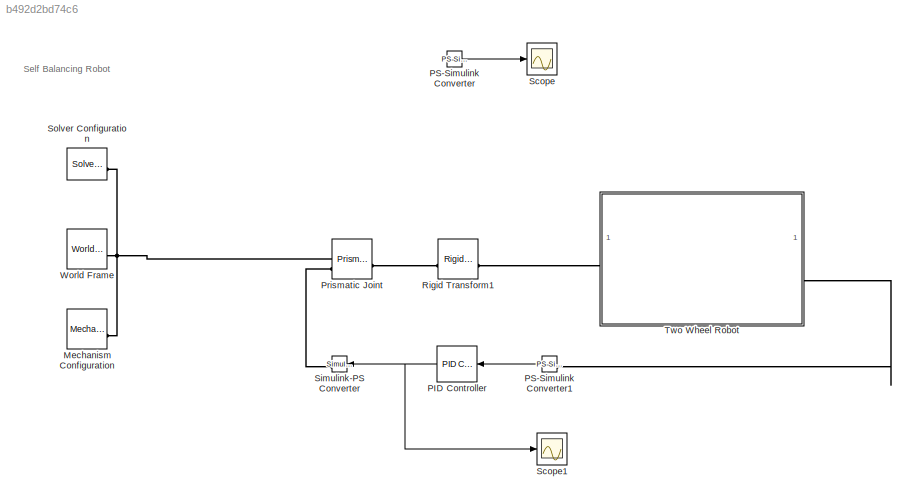
MODEL slx_b492d2bd74c6
KIND model
CONFIG AbsTol = 1e-3
CONFIG EnableMultiTasking = on
CONFIG FixedStep = auto
CONFIG MaxStep = auto
CONFIG MinStep = auto
CONFIG RelTol = 1e-3
CONFIG SampleTimeConstraint = Unconstrained
CONFIG SolverName = VariableStepAuto
CONFIG StartTime = 0.0
CONFIG StopTime = 10.0
BLOCK [Reference] Mechanism Configuration  REF=sm_lib/Utilities/Mechanism
Configuration
  SourceBlock = sm_lib/Utilities/Mechanism\nConfiguration
  SourceType = Mechanism\nConfiguration
BLOCK [Reference] PID Controller  REF=slpidlib/PID Controller
  LibrarySourceBlock = simulink/Continuous/PID Controller
  NameLocation = top
  SourceBlock = slpidlib/PID Controller
  SourceType = PID 1dof
BLOCK [Reference] PS-Simulink Converter  REF=nesl_utility/PS-Simulink
Converter
  SourceBlock = nesl_utility/PS-Simulink\nConverter
  SourceType = PS-Simulink\nConverter
BLOCK [Reference] PS-Simulink Converter1  REF=nesl_utility/PS-Simulink
Converter
  NameLocation = top
  SourceBlock = nesl_utility/PS-Simulink\nConverter
  SourceType = PS-Simulink\nConverter
BLOCK [Reference] Prismatic Joint  REF=sm_lib/Joints/Prismatic
Joint
  SourceBlock = sm_lib/Joints/Prismatic\nJoint
  SourceType = Prismatic\nJoint
BLOCK [Reference] Rigid Transform1  REF=sm_lib/Frames and
Transforms/Rigid
Transform
  SourceBlock = sm_lib/Frames and\nTransforms/Rigid\nTransform
  SourceType = Rigid\nTransform
BLOCK [Scope] Scope
  Floating = off
  NumInputPorts = 1
  ScopeSpecificationString = Simulink.scopes.TimeScopeBlockCfg('CurrentConfiguration', extmgr.ConfigurationSet(extmgr.Configuration('Core','General UI',true),extmgr.Configuration('Core','Source UI',true),extmgr.Configuration('Sources','WiredSimulink',true),extmgr.Configuration('Visuals','Time Domain',true),extmgr.Configuration('Tools','Plot Navigation',true),extmgr.Configuration('Tools','Measurements',true,'Version','2019b'))...<+19ch>
BLOCK [Scope] Scope1
  Floating = off
  NumInputPorts = 1
  ScopeSpecificationString = Simulink.scopes.TimeScopeBlockCfg('CurrentConfiguration', extmgr.ConfigurationSet(extmgr.Configuration('Core','General UI',true),extmgr.Configuration('Core','Source UI',true),extmgr.Configuration('Sources','WiredSimulink',true,'DataLoggingVariableName','ScopeData1'),extmgr.Configuration('Visuals','Time Domain',true,'SerializedDisplays',{struct('MinYLimReal','-3.52828','MaxYLimReal','22.65095','YLa...<+1410ch>
BLOCK [Reference] Simulink-PS Converter  REF=nesl_utility/Simulink-PS
Converter
  NameLocation = top
  SourceBlock = nesl_utility/Simulink-PS\nConverter
  SourceType = Simulink-PS\nConverter
BLOCK [Reference] Solver Configuration  REF=nesl_utility/Solver
Configuration
  SourceBlock = nesl_utility/Solver\nConfiguration
  SourceType = Solver\nConfiguration
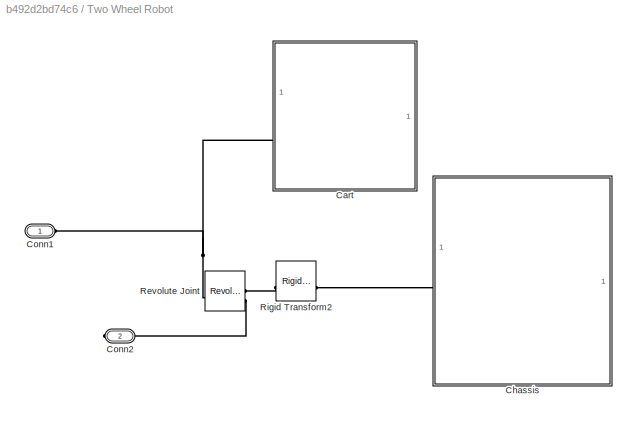
BLOCK [SubSystem] Two Wheel Robot
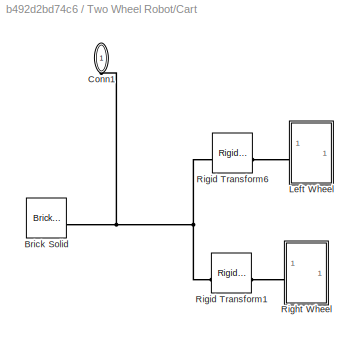
BLOCK [SubSystem] Two Wheel Robot/Cart
BLOCK [Reference] Two Wheel Robot/Cart/Brick Solid  REF=sm_lib/Body Elements/Brick Solid
  SourceBlock = sm_lib/Body Elements/Brick Solid
  SourceType = Brick Solid
BLOCK [PMIOPort] Two Wheel Robot/Cart/Conn1
  NameLocation = left
  Side = Left
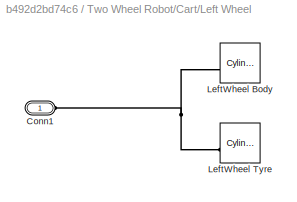
BLOCK [SubSystem] Two Wheel Robot/Cart/Left Wheel
BLOCK [PMIOPort] Two Wheel Robot/Cart/Left Wheel/Conn1
  Side = Left
BLOCK [Reference] Two Wheel Robot/Cart/Left Wheel/LeftWheel Body  REF=sm_lib/Body Elements/Cylindrical Solid
  NameLocation = top
  SourceBlock = sm_lib/Body Elements/Cylindrical Solid
  SourceType = Cylindrical Solid
BLOCK [Reference] Two Wheel Robot/Cart/Left Wheel/LeftWheel Tyre  REF=sm_lib/Body Elements/Cylindrical Solid
  NameLocation = top
  SourceBlock = sm_lib/Body Elements/Cylindrical Solid
  SourceType = Cylindrical Solid
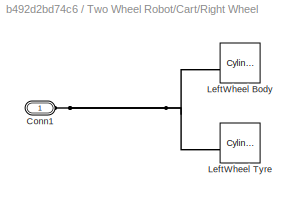
BLOCK [SubSystem] Two Wheel Robot/Cart/Right Wheel
BLOCK [PMIOPort] Two Wheel Robot/Cart/Right Wheel/Conn1
  Side = Left
BLOCK [Reference] Two Wheel Robot/Cart/Right Wheel/LeftWheel Body  REF=sm_lib/Body Elements/Cylindrical Solid
  NameLocation = top
  SourceBlock = sm_lib/Body Elements/Cylindrical Solid
  SourceType = Cylindrical Solid
BLOCK [Reference] Two Wheel Robot/Cart/Right Wheel/LeftWheel Tyre  REF=sm_lib/Body Elements/Cylindrical Solid
  NameLocation = top
  SourceBlock = sm_lib/Body Elements/Cylindrical Solid
  SourceType = Cylindrical Solid
BLOCK [Reference] Two Wheel Robot/Cart/Rigid Transform1  REF=sm_lib/Frames and
Transforms/Rigid
Transform
  SourceBlock = sm_lib/Frames and\nTransforms/Rigid\nTransform
  SourceType = Rigid\nTransform
BLOCK [Reference] Two Wheel Robot/Cart/Rigid Transform6  REF=sm_lib/Frames and
Transforms/Rigid
Transform
  SourceBlock = sm_lib/Frames and\nTransforms/Rigid\nTransform
  SourceType = Rigid\nTransform
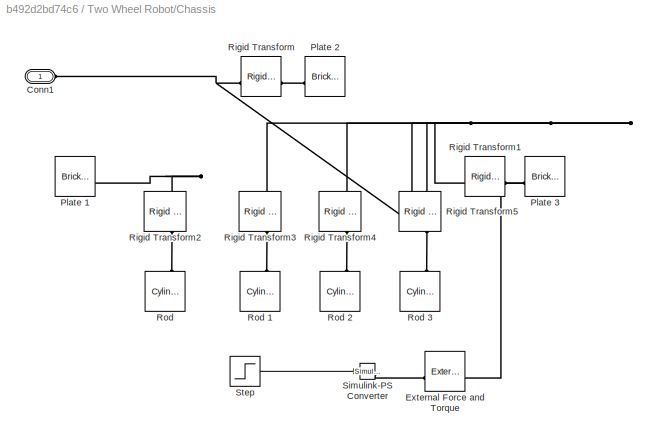
BLOCK [SubSystem] Two Wheel Robot/Chassis
BLOCK [PMIOPort] Two Wheel Robot/Chassis/Conn1
  Side = Left
BLOCK [Reference] Two Wheel Robot/Chassis/External Force and Torque  REF=sm_lib/Forces and
Torques/External Force
and Torque
  SourceBlock = sm_lib/Forces and\nTorques/External Force\nand Torque
  SourceType = External Force\nand Torque
BLOCK [Reference] Two Wheel Robot/Chassis/Plate  2  REF=sm_lib/Body Elements/Brick Solid
  NameLocation = right
  SourceBlock = sm_lib/Body Elements/Brick Solid
  SourceType = Brick Solid
BLOCK [Reference] Two Wheel Robot/Chassis/Plate 1   REF=sm_lib/Body Elements/Brick Solid
  NameLocation = left
  SourceBlock = sm_lib/Body Elements/Brick Solid
  SourceType = Brick Solid
BLOCK [Reference] Two Wheel Robot/Chassis/Plate 3  REF=sm_lib/Body Elements/Brick Solid
  NameLocation = right
  SourceBlock = sm_lib/Body Elements/Brick Solid
  SourceType = Brick Solid
BLOCK [Reference] Two Wheel Robot/Chassis/Rigid Transform  REF=sm_lib/Frames and
Transforms/Rigid
Transform
  SourceBlock = sm_lib/Frames and\nTransforms/Rigid\nTransform
  SourceType = Rigid\nTransform
BLOCK [Reference] Two Wheel Robot/Chassis/Rigid Transform1  REF=sm_lib/Frames and
Transforms/Rigid
Transform
  SourceBlock = sm_lib/Frames and\nTransforms/Rigid\nTransform
  SourceType = Rigid\nTransform
BLOCK [Reference] Two Wheel Robot/Chassis/Rigid Transform2  REF=sm_lib/Frames and
Transforms/Rigid
Transform
  NameLocation = left
  SourceBlock = sm_lib/Frames and\nTransforms/Rigid\nTransform
  SourceType = Rigid\nTransform
BLOCK [Reference] Two Wheel Robot/Chassis/Rigid Transform3  REF=sm_lib/Frames and
Transforms/Rigid
Transform
  NameLocation = left
  SourceBlock = sm_lib/Frames and\nTransforms/Rigid\nTransform
  SourceType = Rigid\nTransform
BLOCK [Reference] Two Wheel Robot/Chassis/Rigid Transform4  REF=sm_lib/Frames and
Transforms/Rigid
Transform
  NameLocation = left
  SourceBlock = sm_lib/Frames and\nTransforms/Rigid\nTransform
  SourceType = Rigid\nTransform
BLOCK [Reference] Two Wheel Robot/Chassis/Rigid Transform5  REF=sm_lib/Frames and
Transforms/Rigid
Transform
  NameLocation = left
  SourceBlock = sm_lib/Frames and\nTransforms/Rigid\nTransform
  SourceType = Rigid\nTransform
BLOCK [Reference] Two Wheel Robot/Chassis/Rod   REF=sm_lib/Body Elements/Cylindrical Solid
  NameLocation = right
  SourceBlock = sm_lib/Body Elements/Cylindrical Solid
  SourceType = Cylindrical Solid
BLOCK [Reference] Two Wheel Robot/Chassis/Rod 1  REF=sm_lib/Body Elements/Cylindrical Solid
  NameLocation = right
  SourceBlock = sm_lib/Body Elements/Cylindrical Solid
  SourceType = Cylindrical Solid
BLOCK [Reference] Two Wheel Robot/Chassis/Rod 2  REF=sm_lib/Body Elements/Cylindrical Solid
  NameLocation = right
  SourceBlock = sm_lib/Body Elements/Cylindrical Solid
  SourceType = Cylindrical Solid
BLOCK [Reference] Two Wheel Robot/Chassis/Rod 3  REF=sm_lib/Body Elements/Cylindrical Solid
  NameLocation = right
  SourceBlock = sm_lib/Body Elements/Cylindrical Solid
  SourceType = Cylindrical Solid
BLOCK [Reference] Two Wheel Robot/Chassis/Simulink-PS Converter  REF=nesl_utility/Simulink-PS
Converter
  SourceBlock = nesl_utility/Simulink-PS\nConverter
  SourceType = Simulink-PS\nConverter
BLOCK [Step] Two Wheel Robot/Chassis/Step
  After = 0
  Before = 10
  SampleTime = 0
  Time = 0.01
BLOCK [PMIOPort] Two Wheel Robot/Conn1
  Side = Left
BLOCK [PMIOPort] Two Wheel Robot/Conn2
  Port = 2
  Side = Right
BLOCK [Reference] Two Wheel Robot/Revolute Joint  REF=sm_lib/Joints/Revolute Joint
  SourceBlock = sm_lib/Joints/Revolute Joint
  SourceType = Revolute Joint
BLOCK [Reference] Two Wheel Robot/Rigid Transform2  REF=sm_lib/Frames and
Transforms/Rigid
Transform
  SourceBlock = sm_lib/Frames and\nTransforms/Rigid\nTransform
  SourceType = Rigid\nTransform
BLOCK [Reference] World Frame  REF=sm_lib/Frames and
Transforms/World Frame
  SourceBlock = sm_lib/Frames and\nTransforms/World Frame
  SourceType = World Frame
ANNOTATION (root): Self Balancing Robot
NET PID Controller:1 -> Scope1:1, Simulink-PS Converter:1
LINE PS-Simulink Converter1:1 -> PID Controller:1
LINE PS-Simulink Converter:1 -> Scope:1
LINE Two Wheel Robot/Chassis/Step:1 -> Two Wheel Robot/Chassis/Simulink-PS Converter:1
PNET net1: Mechanism Configuration:RConn1 -- Prismatic Joint:LConn1 -- Solver Configuration:RConn1 -- World Frame:RConn1
PLINE PS-Simulink Converter1:LConn1 -- Two Wheel Robot:RConn1
PLINE Prismatic Joint:LConn2 -- Simulink-PS Converter:RConn1
PLINE Prismatic Joint:RConn1 -- Rigid Transform1:LConn1
PLINE Rigid Transform1:RConn1 -- Two Wheel Robot:LConn1
PNET net2: Two Wheel Robot/Cart/Brick Solid:RConn1 -- Two Wheel Robot/Cart/Conn1:RConn1 -- Two Wheel Robot/Cart/Rigid Transform1:LConn1 -- Two Wheel Robot/Cart/Rigid Transform6:LConn1
PNET net3: Two Wheel Robot/Cart/Left Wheel/Conn1:RConn1 -- Two Wheel Robot/Cart/Left Wheel/LeftWheel Body:RConn1 -- Two Wheel Robot/Cart/Left Wheel/LeftWheel Tyre:RConn1
PLINE Two Wheel Robot/Cart/Left Wheel:LConn1 -- Two Wheel Robot/Cart/Rigid Transform6:RConn1
PNET net4: Two Wheel Robot/Cart/Right Wheel/Conn1:RConn1 -- Two Wheel Robot/Cart/Right Wheel/LeftWheel Body:RConn1 -- Two Wheel Robot/Cart/Right Wheel/LeftWheel Tyre:RConn1
PLINE Two Wheel Robot/Cart/Right Wheel:LConn1 -- Two Wheel Robot/Cart/Rigid Transform1:RConn1
PNET net5: Two Wheel Robot/Cart:LConn1 -- Two Wheel Robot/Conn1:RConn1 -- Two Wheel Robot/Revolute Joint:LConn1
PNET net6: Two Wheel Robot/Chassis/Conn1:RConn1 -- Two Wheel Robot/Chassis/Plate 1 :RConn1 -- Two Wheel Robot/Chassis/Rigid Transform1:LConn1 -- Two Wheel Robot/Chassis/Rigid Transform2:LConn1 -- Two Wheel Robot/Chassis/Rigid Transform3:LConn1 -- Two Wheel Robot/Chassis/Rigid Transform4:LConn1 -- Two Wheel Robot/Chassis/Rigid Transform5:LConn1 -- Two Wheel Robot/Chassis/Rigid Transform:LConn1
PLINE Two Wheel Robot/Chassis/External Force and Torque:LConn1 -- Two Wheel Robot/Chassis/Simulink-PS Converter:RConn1
PNET net7: Two Wheel Robot/Chassis/External Force and Torque:RConn1 -- Two Wheel Robot/Chassis/Plate 3:RConn1 -- Two Wheel Robot/Chassis/Rigid Transform1:RConn1
PLINE Two Wheel Robot/Chassis/Plate  2:RConn1 -- Two Wheel Robot/Chassis/Rigid Transform:RConn1
PLINE Two Wheel Robot/Chassis/Rigid Transform2:RConn1 -- Two Wheel Robot/Chassis/Rod :RConn1
PLINE Two Wheel Robot/Chassis/Rigid Transform3:RConn1 -- Two Wheel Robot/Chassis/Rod 1:RConn1
PLINE Two Wheel Robot/Chassis/Rigid Transform4:RConn1 -- Two Wheel Robot/Chassis/Rod 2:RConn1
PLINE Two Wheel Robot/Chassis/Rigid Transform5:RConn1 -- Two Wheel Robot/Chassis/Rod 3:RConn1
PLINE Two Wheel Robot/Chassis:LConn1 -- Two Wheel Robot/Rigid Transform2:RConn1
PLINE Two Wheel Robot/Conn2:RConn1 -- Two Wheel Robot/Revolute Joint:RConn2
PLINE Two Wheel Robot/Revolute Joint:RConn1 -- Two Wheel Robot/Rigid Transform2:LConn1
note: NET lines group one-source signal fan-out (src -> all destinations, sorted); 1:1 wires keep LINE; PNET lines group multi-terminal physical nets as a canonical sorted terminal list (undirected conserving connections); 2-terminal nets keep the pairwise PLINE form
